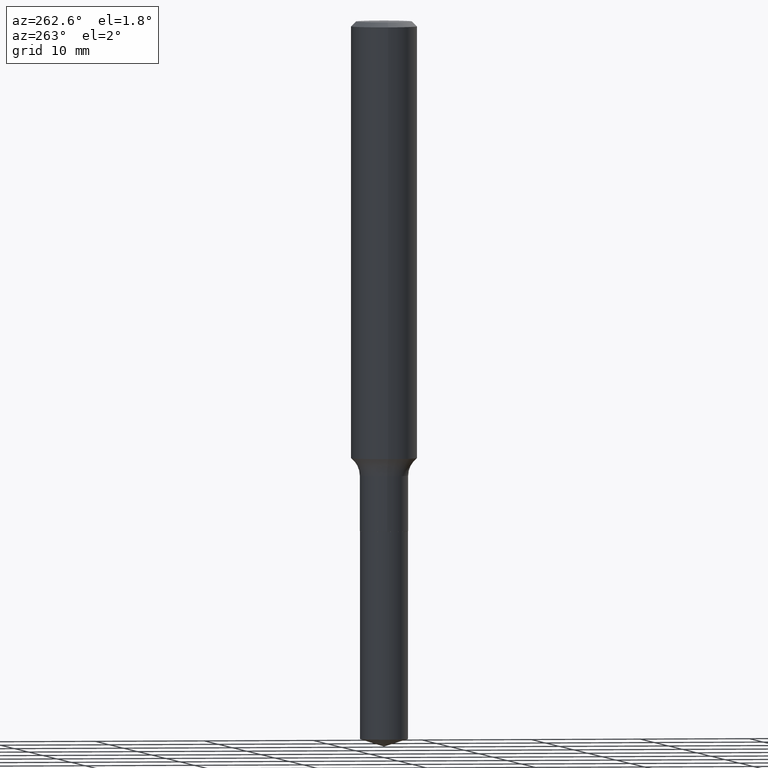
[diagram: clean part render]
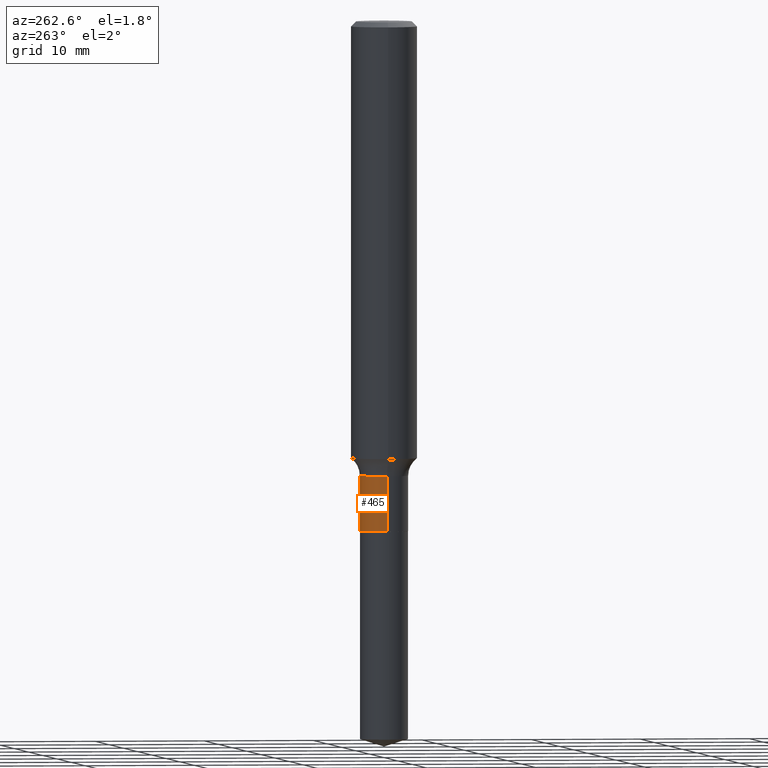
[diagram: same view with one face highlighted and labeled with its STEP entity id]
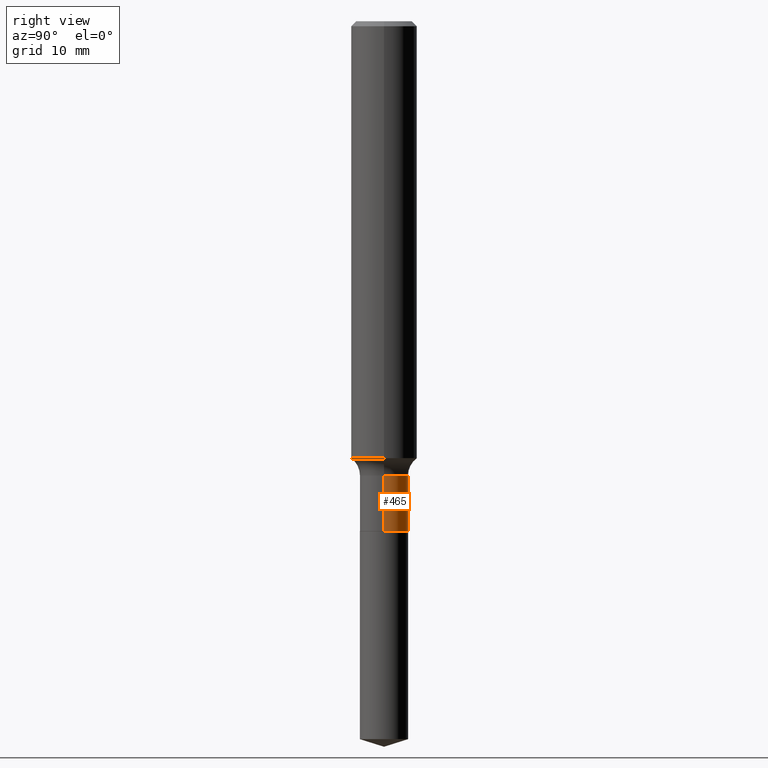
[diagram: same view with one face highlighted and labeled with its STEP entity id]
A machine part, auxiliary view. The second image highlights one B-rep face of the part: STEP entity #465.
A second angle (right view) of the same face is appended — the face is thin or edge-on in the first view.
In plain terms, the highlighted cylindrical surface (edge-blend (fillet) strip) has radius 2.1996 mm, axis along (-0, 0, 1).
Its self-contained STEP definition (entity closure, byte-faithful):
#1 = DIRECTION ( 'NONE',  ( 1.000000000000000000, -6.982962677686270655E-15, 0.000000000000000000 ) ) ;
#25 = CARTESIAN_POINT ( 'NONE',  ( 4.465915133855296004E-29, -6.376143220995352070E-15, -1.826200000000000045 ) ) ;
#30 = VERTEX_POINT ( 'NONE', #251 ) ;
#80 = DIRECTION ( 'NONE',  ( 1.000000000000000000, -6.982962677686267499E-15, 4.876176775795936353E-29 ) ) ;
#94 = EDGE_CURVE ( 'NONE', #426, #106, #421, .T. ) ;
#106 = VERTEX_POINT ( 'NONE', #224 ) ;
#107 = CARTESIAN_POINT ( 'NONE',  ( -0.08659999999999996867, -5.413934540813038672E-15, -1.627499999999999725 ) ) ;
#111 = DIRECTION ( 'NONE',  ( 1.000000000000000000, -6.982962677686267499E-15, 0.000000000000000000 ) ) ;
#114 = CARTESIAN_POINT ( 'NONE',  ( 0.000000000000000000, 0.000000000000000000, 0.000000000000000000 ) ) ;
#118 = DIRECTION ( 'NONE',  ( -2.445468806185136877E-29, 3.491481338843145188E-15, 1.000000000000000000 ) ) ;
#159 = DIRECTION ( 'NONE',  ( -2.445468806185136597E-29, 3.491481338843145583E-15, 1.000000000000000000 ) ) ;
#218 = AXIS2_PLACEMENT_3D ( 'NONE', #25, #397, #111 ) ;
#224 = CARTESIAN_POINT ( 'NONE',  ( -0.08660000000000001030, -5.413934540813038672E-15, -1.826200000000000045 ) ) ;
#251 = CARTESIAN_POINT ( 'NONE',  ( 0.08659999999999996867, -6.287110446854849077E-15, -1.627499999999999725 ) ) ;
#253 = ORIENTED_EDGE ( 'NONE', *, *, #94, .T. ) ;
#284 = AXIS2_PLACEMENT_3D ( 'NONE', #114, #362, #80 ) ;
#297 = CARTESIAN_POINT ( 'NONE',  ( 0.08660000000000001030, -6.980867788882982994E-15, -1.826200000000000045 ) ) ;
#299 = CARTESIAN_POINT ( 'NONE',  ( 3.980000482066309296E-29, -5.682385878967218942E-15, -1.627499999999999725 ) ) ;
#303 = FACE_OUTER_BOUND ( 'NONE', #429, .T. ) ;
#305 = CARTESIAN_POINT ( 'NONE',  ( -0.08659999999999998255, 6.153300091682466370E-16, -4.259797788160747406E-30 ) ) ;
#318 = VERTEX_POINT ( 'NONE', #107 ) ;
#326 = ORIENTED_EDGE ( 'NONE', *, *, #471, .F. ) ;
#330 = CYLINDRICAL_SURFACE ( 'NONE', #284, 0.08659999999999998255 ) ;
#332 = LINE ( 'NONE', #452, #386 ) ;
#362 = DIRECTION ( 'NONE',  ( -2.445468806185136597E-29, 3.491481338843145583E-15, 1.000000000000000000 ) ) ;
#385 = ORIENTED_EDGE ( 'NONE', *, *, #447, .T. ) ;
#386 = VECTOR ( 'NONE', #409, 39.37007874015748143 ) ;
#388 = ORIENTED_EDGE ( 'NONE', *, *, #390, .F. ) ;
#390 = EDGE_CURVE ( 'NONE', #30, #318, #463, .T. ) ;
#397 = DIRECTION ( 'NONE',  ( -2.445468806185136597E-29, 3.491481338843145583E-15, 1.000000000000000000 ) ) ;
#398 = VECTOR ( 'NONE', #118, 39.37007874015748143 ) ;
#409 = DIRECTION ( 'NONE',  ( -2.445468806185136877E-29, 3.491481338843145188E-15, 1.000000000000000000 ) ) ;
#421 = CIRCLE ( 'NONE', #218, 0.08660000000000001030 ) ;
#426 = VERTEX_POINT ( 'NONE', #297 ) ;
#429 = EDGE_LOOP ( 'NONE', ( #253, #385, #388, #326 ) ) ;
#445 = LINE ( 'NONE', #305, #398 ) ;
#447 = EDGE_CURVE ( 'NONE', #106, #318, #445, .T. ) ;
#452 = CARTESIAN_POINT ( 'NONE',  ( 0.08659999999999998255, -6.047245678876306285E-16, 4.222769087839279853E-30 ) ) ;
#463 = CIRCLE ( 'NONE', #476, 0.08659999999999996867 ) ;
#465 = ADVANCED_FACE ( 'NONE', ( #303 ), #330, .T. ) ;
#471 = EDGE_CURVE ( 'NONE', #426, #30, #332, .T. ) ;
#476 = AXIS2_PLACEMENT_3D ( 'NONE', #299, #159, #1 ) ;